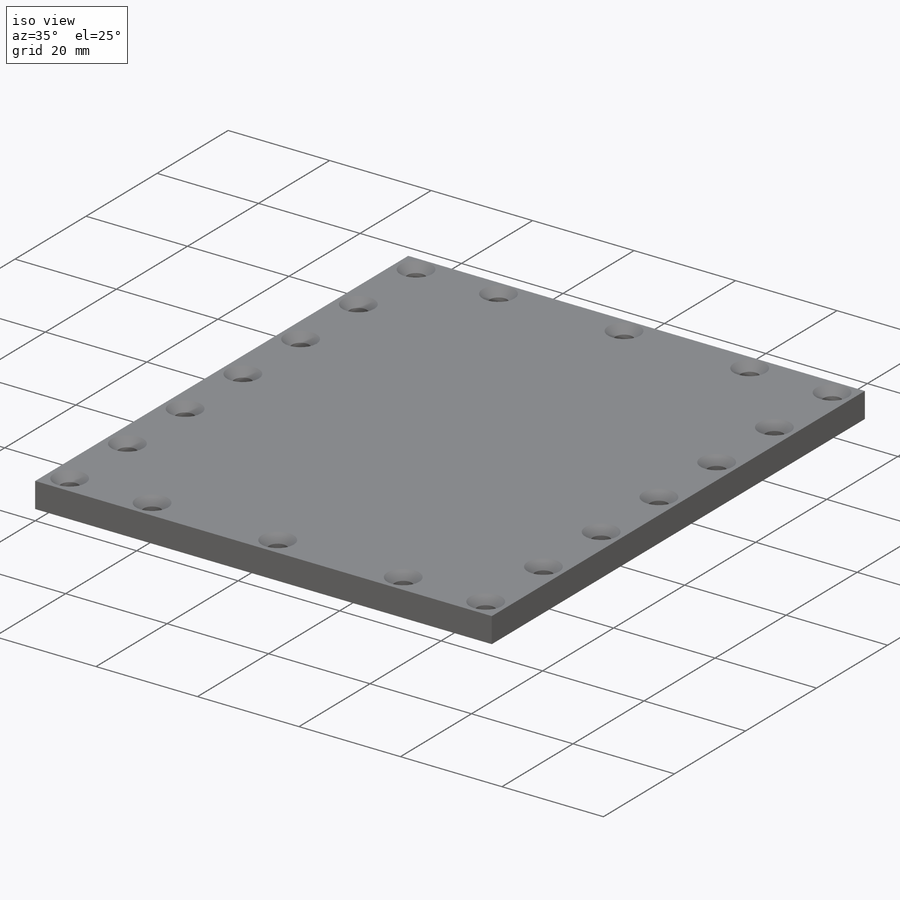
[diagram: iso view]
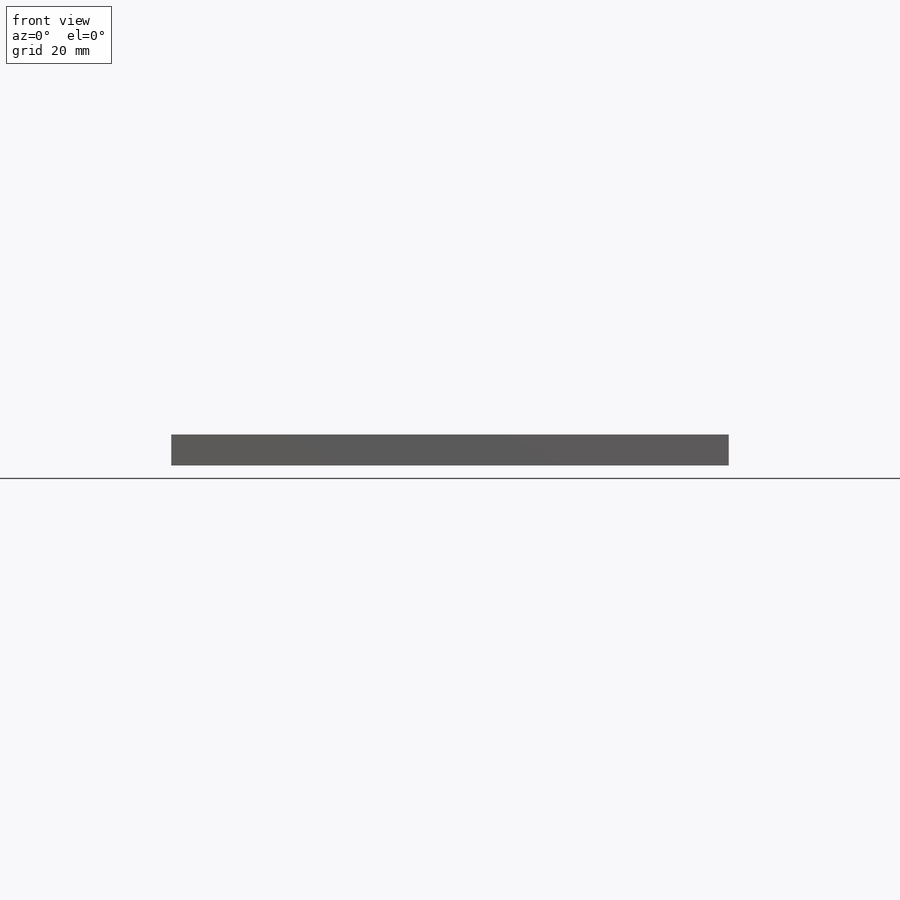
[diagram: front view]
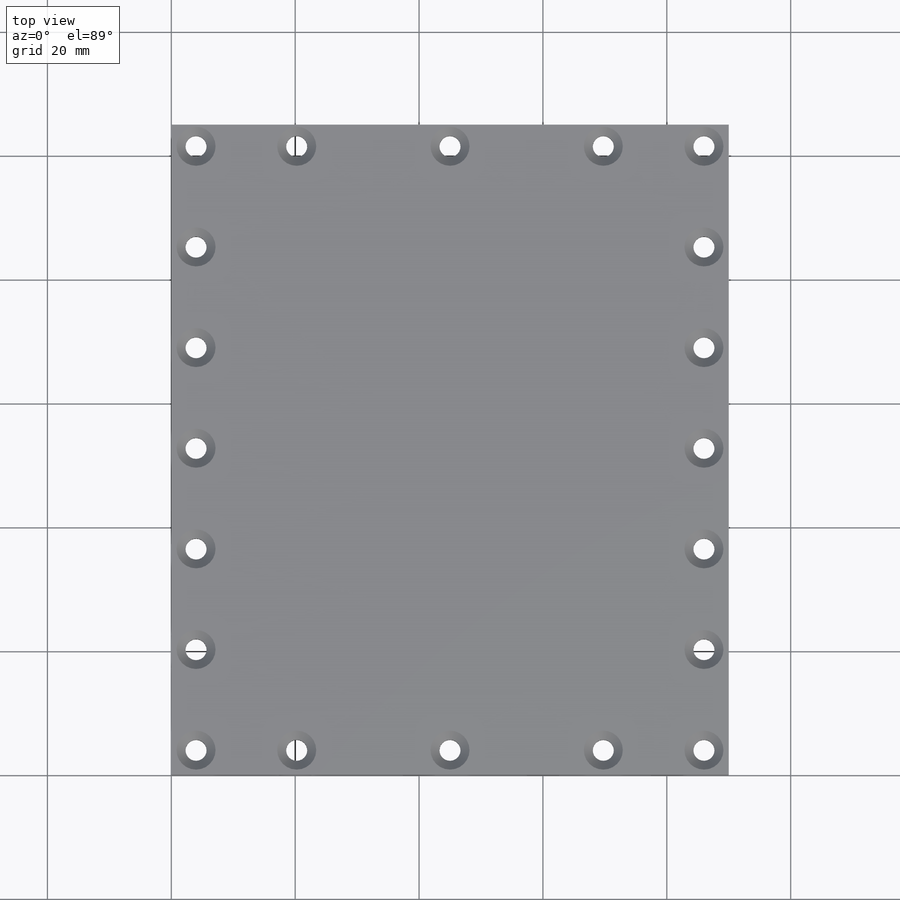
[diagram: top view]
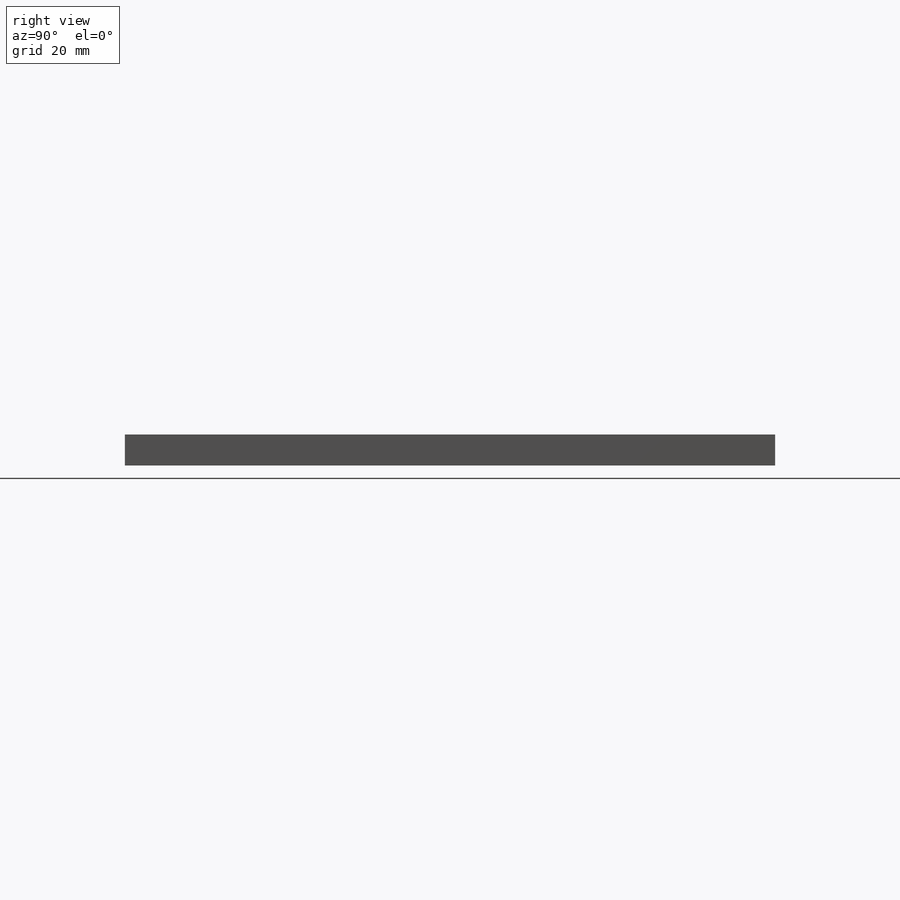
[diagram: right view]
SOLIDWORKS PART (.sldprt)
format: sldprt  version: not decoded by parser v0  size: 299,008 bytes
history: native  units: mm
features: sketch x5, material x1, extrude x1, hole x1, cut_extrude x1 (+16 scaffold rows collapsed)
feature tree (25):
  scaffold x16  (default folders/planes/origin — collapsed)
  material  "AISI 1020 Steel, Cold Rolled"
  sketch  "Sketch1"  dims[D1=3.5mm]
  extrude  "Extrude1"  Depth=5mm
  sketch  "Sketch2"  dims[c1.D3=7.0mm c1.D4=9.0mm c1.D5=7.0mm c1.D6=9.0mm c2.D5=9.0mm c2.D6=7.0mm c2.D3=7.0mm c2.D4=9.0mm c3.D5=80.0mm c3.D1=7.0mm c3.D2=2.0mm]
  sketch  "Sketch5"
  hole  "CSK for M3 Countersunk Flat Head Screw1"  Diameter=3.4mm Depth=5mm
  sketch  "3DSketch3"
  sketch  "Sketch7"  dims[hole-wizard template sketch: 56 standard entries collapsed; hole parameters kept: c17.Near C'Sink Dia.=6.3mm c17.D4=~3.666174mm c17.Near C'Sink Angle=90.0deg]
  cut_extrude  "Extrude2"  Depth=0.75mm
decode coverage: 6 of 8 modeling features carry decoded parameters
note: ~ marks probable driven/reference dimensions
note: suppression state not decoded; provenance and decode notes live in map.json
